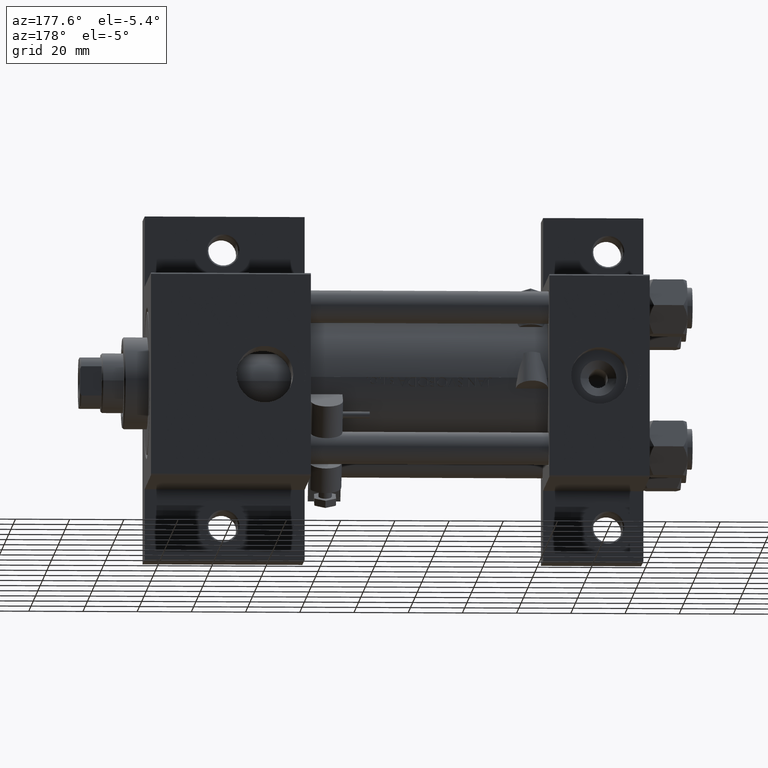
[diagram: clean part render]
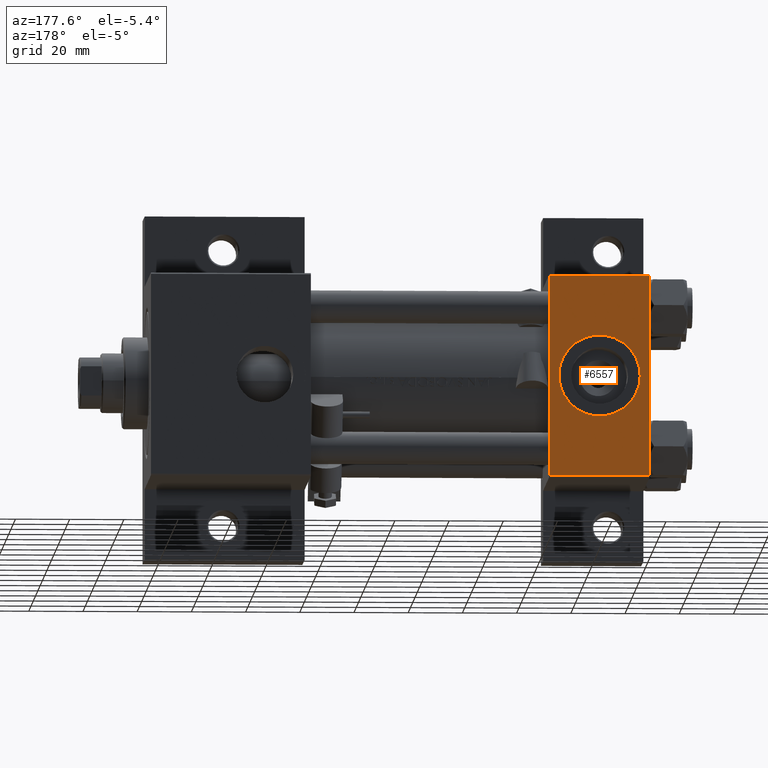
[diagram: same view with one face highlighted and labeled with its STEP entity id]
A machine part, auxiliary view. The second image highlights one B-rep face of the part: STEP entity #6557.
In plain terms, the highlighted planar face has unit normal (0, -1, -0).
Its self-contained STEP definition (entity closure, byte-faithful):
#1509 = CIRCLE ( 'NONE', #42373, 15.00000000000000355 ) ;
#1977 = LINE ( 'NONE', #32946, #37772 ) ;
#2336 = AXIS2_PLACEMENT_3D ( 'NONE', #19305, #30393, #45158 ) ;
#3191 = CARTESIAN_POINT ( 'NONE',  ( 0.000000000000000000, 36.99999999999999289, 37.50000000000000000 ) ) ;
#3601 = VERTEX_POINT ( 'NONE', #34511 ) ;
#5059 = ORIENTED_EDGE ( 'NONE', *, *, #22437, .F. ) ;
#5524 = VECTOR ( 'NONE', #36816, 1000.000000000000000 ) ;
#6557 = ADVANCED_FACE ( 'NONE', ( #11314, #32980 ), #26332, .F. ) ;
#9274 = CARTESIAN_POINT ( 'NONE',  ( 37.00000000000000000, 36.99999999999999289, 37.50000000000000000 ) ) ;
#10830 = DIRECTION ( 'NONE',  ( 0.000000000000000000, 0.000000000000000000, 1.000000000000000000 ) ) ;
#11314 = FACE_BOUND ( 'NONE', #47187, .T. ) ;
#11629 = VERTEX_POINT ( 'NONE', #9274 ) ;
#11968 = EDGE_CURVE ( 'NONE', #11629, #34260, #20776, .T. ) ;
#14371 = DIRECTION ( 'NONE',  ( -1.000000000000000000, 0.000000000000000000, 0.000000000000000000 ) ) ;
#18109 = CARTESIAN_POINT ( 'NONE',  ( 37.00000000000000000, 37.49999999999999289, 37.50000000000000000 ) ) ;
#19305 = CARTESIAN_POINT ( 'NONE',  ( 18.50000000000000000, -5.204170427930421283E-15, 37.50000000000000000 ) ) ;
#20776 = LINE ( 'NONE', #40466, #42690 ) ;
#21119 = EDGE_CURVE ( 'NONE', #3601, #29783, #1509, .T. ) ;
#22437 = EDGE_CURVE ( 'NONE', #29783, #3601, #36108, .T. ) ;
#22982 = AXIS2_PLACEMENT_3D ( 'NONE', #45261, #33942, #48206 ) ;
#23534 = DIRECTION ( 'NONE',  ( 1.000000000000000000, 0.000000000000000000, 0.000000000000000000 ) ) ;
#24416 = EDGE_CURVE ( 'NONE', #34260, #48353, #1977, .T. ) ;
#24753 = EDGE_CURVE ( 'NONE', #11629, #37490, #44683, .T. ) ;
#25876 = ORIENTED_EDGE ( 'NONE', *, *, #29659, .T. ) ;
#26332 = PLANE ( 'NONE',  #22982 ) ;
#29659 = EDGE_CURVE ( 'NONE', #48353, #37490, #42240, .T. ) ;
#29763 = DIRECTION ( 'NONE',  ( 1.000000000000000000, 0.000000000000000000, 0.000000000000000000 ) ) ;
#29783 = VERTEX_POINT ( 'NONE', #32866 ) ;
#30393 = DIRECTION ( 'NONE',  ( 0.000000000000000000, 0.000000000000000000, 1.000000000000000000 ) ) ;
#31056 = EDGE_LOOP ( 'NONE', ( #45050, #25876, #43466, #42189 ) ) ;
#31685 = CARTESIAN_POINT ( 'NONE',  ( 37.00000000000000000, -37.00000000000000711, 37.49999999999999289 ) ) ;
#32866 = CARTESIAN_POINT ( 'NONE',  ( 33.50000000000000000, -5.204170427930421283E-15, 37.50000000000000000 ) ) ;
#32946 = CARTESIAN_POINT ( 'NONE',  ( 0.000000000000000000, 37.49999999999999289, 37.50000000000000000 ) ) ;
#32980 = FACE_OUTER_BOUND ( 'NONE', #31056, .T. ) ;
#33942 = DIRECTION ( 'NONE',  ( 0.000000000000000000, 9.251858538542971581E-17, -1.000000000000000000 ) ) ;
#34260 = VERTEX_POINT ( 'NONE', #3191 ) ;
#34511 = CARTESIAN_POINT ( 'NONE',  ( 3.499999999999997780, -3.367200229209391300E-15, 37.50000000000000000 ) ) ;
#36108 = CIRCLE ( 'NONE', #2336, 15.00000000000000355 ) ;
#36816 = DIRECTION ( 'NONE',  ( 0.000000000000000000, -1.000000000000000000, -9.251858538542971581E-17 ) ) ;
#37490 = VERTEX_POINT ( 'NONE', #31685 ) ;
#37772 = VECTOR ( 'NONE', #47921, 1000.000000000000000 ) ;
#37962 = ORIENTED_EDGE ( 'NONE', *, *, #21119, .F. ) ;
#40466 = CARTESIAN_POINT ( 'NONE',  ( 0.000000000000000000, 36.99999999999999289, 37.50000000000000000 ) ) ;
#41276 = CARTESIAN_POINT ( 'NONE',  ( 37.00000000000000000, -37.00000000000000711, 37.49999999999999289 ) ) ;
#42189 = ORIENTED_EDGE ( 'NONE', *, *, #11968, .T. ) ;
#42240 = LINE ( 'NONE', #41276, #46534 ) ;
#42373 = AXIS2_PLACEMENT_3D ( 'NONE', #44536, #10830, #29763 ) ;
#42690 = VECTOR ( 'NONE', #14371, 1000.000000000000000 ) ;
#43466 = ORIENTED_EDGE ( 'NONE', *, *, #24753, .F. ) ;
#44536 = CARTESIAN_POINT ( 'NONE',  ( 18.50000000000000000, -5.204170427930421283E-15, 37.50000000000000000 ) ) ;
#44683 = LINE ( 'NONE', #18109, #5524 ) ;
#45050 = ORIENTED_EDGE ( 'NONE', *, *, #24416, .T. ) ;
#45158 = DIRECTION ( 'NONE',  ( 1.000000000000000000, 0.000000000000000000, 0.000000000000000000 ) ) ;
#45261 = CARTESIAN_POINT ( 'NONE',  ( 37.00000000000000000, 37.49999999999999289, 37.50000000000000000 ) ) ;
#45720 = CARTESIAN_POINT ( 'NONE',  ( 0.000000000000000000, -37.00000000000000711, 37.49999999999999289 ) ) ;
#46534 = VECTOR ( 'NONE', #23534, 1000.000000000000000 ) ;
#47187 = EDGE_LOOP ( 'NONE', ( #5059, #37962 ) ) ;
#47921 = DIRECTION ( 'NONE',  ( 0.000000000000000000, -1.000000000000000000, -9.251858538542971581E-17 ) ) ;
#48206 = DIRECTION ( 'NONE',  ( 0.000000000000000000, 1.000000000000000000, 9.251858538542971581E-17 ) ) ;
#48353 = VERTEX_POINT ( 'NONE', #45720 ) ;